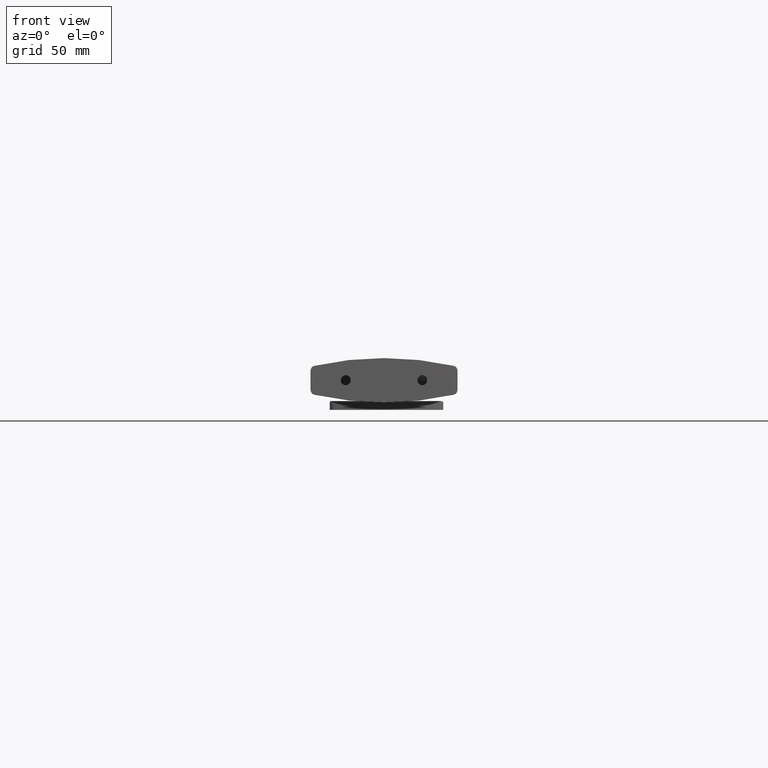
[diagram: clean part render]
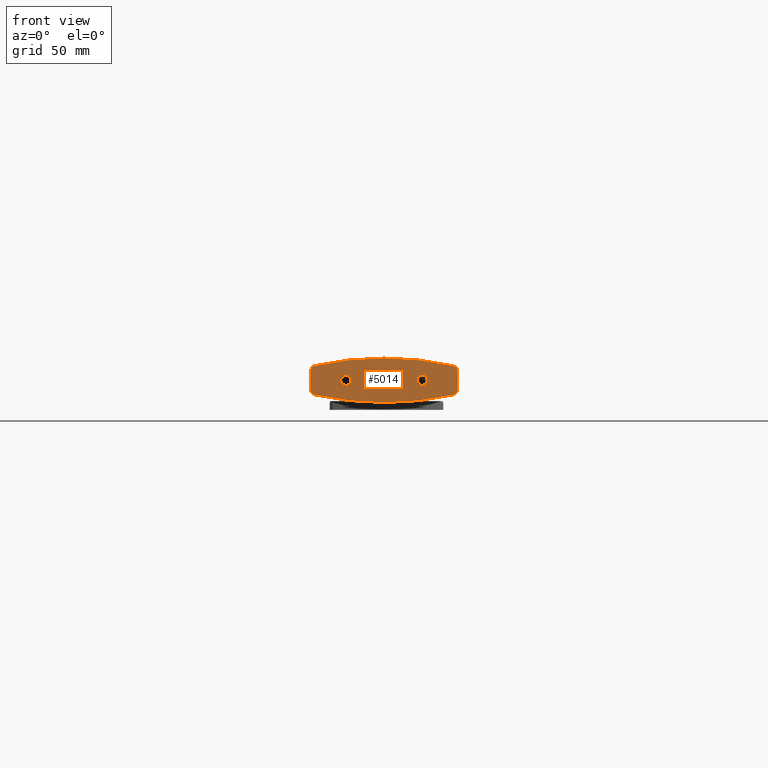
[diagram: same view with one face highlighted and labeled with its STEP entity id]
A machine part, front view. The second image highlights one B-rep face of the part: STEP entity #5014.
In plain terms, the highlighted planar face has unit normal (-0, 1, -0).
Its self-contained STEP definition (entity closure, byte-faithful):
#349=LINE('',#7573,#600);
#433=LINE('',#7816,#684);
#600=VECTOR('',#6136,7.82185340190686);
#684=VECTOR('',#6374,7.82185340190688);
#1032=PLANE('',#5469);
#1118=FACE_BOUND('',#1625,.T.);
#1119=FACE_BOUND('',#1626,.T.);
#1243=FACE_OUTER_BOUND('',#1624,.T.);
#1624=EDGE_LOOP('',(#3827,#3828,#3829,#3830,#3831,#3832,#3833,#3834));
#1625=EDGE_LOOP('',(#3835));
#1626=EDGE_LOOP('',(#3836));
#1995=CIRCLE('',#5391,128.187499999999);
#1996=CIRCLE('',#5393,2.);
#1997=CIRCLE('',#5396,2.);
#2009=CIRCLE('',#5434,2.);
#2011=CIRCLE('',#5438,2.);
#2016=CIRCLE('',#5470,128.1875);
#2017=CIRCLE('',#5471,2.);
#2018=CIRCLE('',#5472,2.);
#2295=VERTEX_POINT('',#7561);
#2296=VERTEX_POINT('',#7563);
#2297=VERTEX_POINT('',#7567);
#2298=VERTEX_POINT('',#7571);
#2299=VERTEX_POINT('',#7575);
#2361=VERTEX_POINT('',#7736);
#2363=VERTEX_POINT('',#7742);
#2378=VERTEX_POINT('',#7811);
#2379=VERTEX_POINT('',#7813);
#2380=VERTEX_POINT('',#7815);
#2780=EDGE_CURVE('',#2296,#2295,#1995,.T.);
#2783=EDGE_CURVE('',#2297,#2295,#1996,.T.);
#2785=EDGE_CURVE('',#2297,#2298,#349,.T.);
#2787=EDGE_CURVE('',#2299,#2298,#1997,.T.);
#2865=EDGE_CURVE('',#2361,#2361,#2009,.T.);
#2867=EDGE_CURVE('',#2363,#2363,#2011,.T.);
#2900=EDGE_CURVE('',#2299,#2378,#2016,.T.);
#2901=EDGE_CURVE('',#2379,#2378,#2017,.T.);
#2902=EDGE_CURVE('',#2379,#2380,#433,.T.);
#2903=EDGE_CURVE('',#2296,#2380,#2018,.T.);
#3827=ORIENTED_EDGE('',*,*,#2787,.F.);
#3828=ORIENTED_EDGE('',*,*,#2900,.T.);
#3829=ORIENTED_EDGE('',*,*,#2901,.F.);
#3830=ORIENTED_EDGE('',*,*,#2902,.T.);
#3831=ORIENTED_EDGE('',*,*,#2903,.F.);
#3832=ORIENTED_EDGE('',*,*,#2780,.T.);
#3833=ORIENTED_EDGE('',*,*,#2783,.F.);
#3834=ORIENTED_EDGE('',*,*,#2785,.T.);
#3835=ORIENTED_EDGE('',*,*,#2865,.T.);
#3836=ORIENTED_EDGE('',*,*,#2867,.T.);
#5014=ADVANCED_FACE('',(#1243,#1118,#1119),#1032,.F.);
#5391=AXIS2_PLACEMENT_3D('',#7564,#6125,#6126);
#5393=AXIS2_PLACEMENT_3D('',#7569,#6131,#6132);
#5396=AXIS2_PLACEMENT_3D('',#7577,#6140,#6141);
#5434=AXIS2_PLACEMENT_3D('',#7737,#6276,#6277);
#5438=AXIS2_PLACEMENT_3D('',#7743,#6284,#6285);
#5469=AXIS2_PLACEMENT_3D('',#7810,#6368,#6369);
#5470=AXIS2_PLACEMENT_3D('',#7812,#6370,#6371);
#5471=AXIS2_PLACEMENT_3D('',#7814,#6372,#6373);
#5472=AXIS2_PLACEMENT_3D('',#7817,#6375,#6376);
#6125=DIRECTION('center_axis',(0.,0.,-1.));
#6126=DIRECTION('ref_axis',(0.972696245733788,-0.232081911262799,0.));
#6131=DIRECTION('center_axis',(0.,0.,1.));
#6132=DIRECTION('ref_axis',(-0.624535488601751,0.780996429874665,0.));
#6136=DIRECTION('',(1.,4.03717463500057E-16,0.));
#6140=DIRECTION('center_axis',(0.,0.,1.));
#6141=DIRECTION('ref_axis',(0.624535488601755,0.780996429874662,0.));
#6276=DIRECTION('center_axis',(0.,0.,1.));
#6277=DIRECTION('ref_axis',(1.,0.,0.));
#6284=DIRECTION('center_axis',(0.,0.,1.));
#6285=DIRECTION('ref_axis',(1.,0.,0.));
#6368=DIRECTION('center_axis',(0.,0.,1.));
#6369=DIRECTION('ref_axis',(1.,0.,0.));
#6370=DIRECTION('center_axis',(0.,0.,-1.));
#6371=DIRECTION('ref_axis',(-0.972696245733789,0.232081911262798,0.));
#6372=DIRECTION('center_axis',(0.,0.,1.));
#6373=DIRECTION('ref_axis',(0.62453548860175,-0.780996429874665,0.));
#6374=DIRECTION('',(-1.,-4.03717463500057E-16,0.));
#6375=DIRECTION('center_axis',(0.,0.,1.));
#6376=DIRECTION('ref_axis',(-0.624535488601749,-0.780996429874666,0.));
#7561=CARTESIAN_POINT('',(-5.86196664866542,28.1898216939079,0.));
#7563=CARTESIAN_POINT('',(-5.8619666486654,-28.1898216939079,0.));
#7564=CARTESIAN_POINT('Origin',(119.187499999999,4.88498130835069E-14,0.));
#7567=CARTESIAN_POINT('',(-3.91092670095343,29.75,0.));
#7569=CARTESIAN_POINT('Origin',(-3.91092670095343,27.75,0.));
#7571=CARTESIAN_POINT('',(3.91092670095343,29.75,0.));
#7573=CARTESIAN_POINT('',(-5.5,29.75,0.));
#7575=CARTESIAN_POINT('',(5.86196664866542,28.1898216939079,0.));
#7577=CARTESIAN_POINT('Origin',(3.91092670095343,27.75,0.));
#7736=CARTESIAN_POINT('',(-2.00000000000001,15.5,0.));
#7737=CARTESIAN_POINT('Origin',(-5.69460761603519E-15,15.5,0.));
#7742=CARTESIAN_POINT('',(-2.,-15.5,0.));
#7743=CARTESIAN_POINT('Origin',(0.,-15.5,0.));
#7810=CARTESIAN_POINT('Origin',(1.30764511001159E-14,3.52387770217592E-14,
0.));
#7811=CARTESIAN_POINT('',(5.86196664866543,-28.1898216939079,0.));
#7812=CARTESIAN_POINT('Origin',(-119.1875,-4.21884749357559E-14,0.));
#7813=CARTESIAN_POINT('',(3.91092670095347,-29.75,0.));
#7814=CARTESIAN_POINT('Origin',(3.91092670095347,-27.75,0.));
#7815=CARTESIAN_POINT('',(-3.91092670095341,-29.75,0.));
#7816=CARTESIAN_POINT('',(5.50000000000002,-29.75,0.));
#7817=CARTESIAN_POINT('Origin',(-3.91092670095341,-27.75,0.));